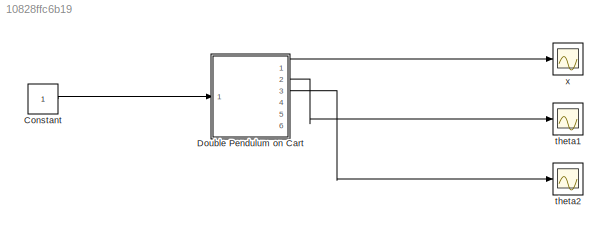
MODEL slx_10828ffc6b19
KIND model
CONFIG AbsTol = auto
CONFIG EnableMultiTasking = off
CONFIG FixedStep = 0.05
CONFIG MaxStep = auto
CONFIG MinStep = auto
CONFIG RelTol = 0.4
CONFIG SampleTimeConstraint = Unconstrained
CONFIG Solver = ode15s
CONFIG SolverName = ode15s
CONFIG StartTime = 0.0
CONFIG StopTime = 0.5
BLOCK [Constant] Constant
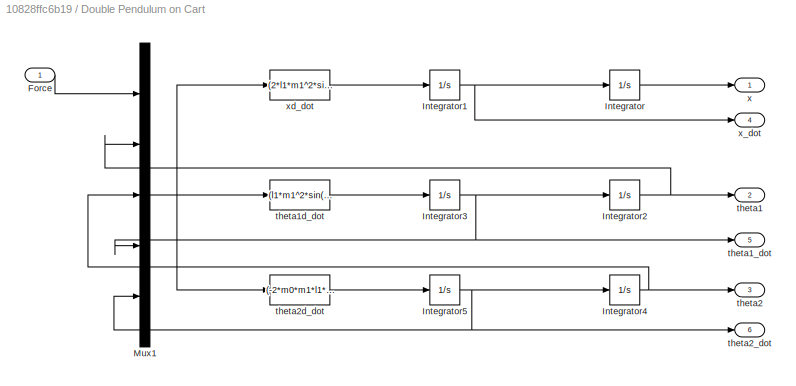
BLOCK [SubSystem] Double Pendulum on Cart
  Ports = [1, 6]
  RequestExecContextInheritance = off
BLOCK [Inport] Double Pendulum on Cart/Force
  IconDisplay = Port number
BLOCK [Integrator] Double Pendulum on Cart/Integrator
  Ports = [1, 1]
BLOCK [Integrator] Double Pendulum on Cart/Integrator1
  Ports = [1, 1]
BLOCK [Integrator] Double Pendulum on Cart/Integrator2
  Ports = [1, 1]
BLOCK [Integrator] Double Pendulum on Cart/Integrator3
  Ports = [1, 1]
BLOCK [Integrator] Double Pendulum on Cart/Integrator4
  Ports = [1, 1]
BLOCK [Integrator] Double Pendulum on Cart/Integrator5
  Ports = [1, 1]
BLOCK [Mux] Double Pendulum on Cart/Mux1
  DisplayOption = bar
  Inputs = 5
  Ports = [5, 1]
BLOCK [Outport] Double Pendulum on Cart/theta1
  IconDisplay = Port number
  Port = 2
  VectorParamsAs1DForOutWhenUnconnected = off
BLOCK [Outport] Double Pendulum on Cart/theta1_dot
  IconDisplay = Port number
  Port = 5
  VectorParamsAs1DForOutWhenUnconnected = off
BLOCK [Fcn] Double Pendulum on Cart/theta1d_dot
  Expr = (l1*m1^2*sin(2*u(2))+l1*m1*m2*sin(2*u(2))+l2*m0*m2*l2*sin(2*u(2)-2*u(3)))*u(4)^2-(m1*m2*l2*sin(u(2)+u(3))+m1*m2*l2*sin(u(2)-u(3))+2*m0*m2*l2*sin(u(2)-u(3)))*u(5)^2-m0*m1*(-2*sin(u(2))-m0*m2*sin(u(2))-2*m1^2*sin(u(2))-2*m1*m2*sin(u(2))-m0*m2*sin(u(2))-2*u(3))*g+(2*m0*m1*cos(u(2))+m0*m2*cos(u(2))-m0*m2*cos(u(2)-u(3)))*u(1)/(l1*(m1^2+2*m0*m1+m0*m2+m1*m2-m0*m2*cos(2*u(2)-2*u(3))-m1^2*cos(2*u(2))))
BLOCK [Outport] Double Pendulum on Cart/theta2
  IconDisplay = Port number
  Port = 3
  VectorParamsAs1DForOutWhenUnconnected = off
BLOCK [Outport] Double Pendulum on Cart/theta2_dot
  IconDisplay = Port number
  Port = 6
  VectorParamsAs1DForOutWhenUnconnected = off
BLOCK [Fcn] Double Pendulum on Cart/theta2d_dot
  Expr = (-2*m0*m1*l1*sin(u(2)-u(3))-2*m0*m2*l2*sin(u(2)-u(3)))*u(4)^2+m0*m2*l2*sin(2*u(2)-2*u(3))*u(5)^2-(m0*m1*sin(2*u(2)-u(3))-m0*m1*sin(u(3))+m0*m2*sin(2*u(2)-u(3))-m0*m2*sin(u(3)))*g+(m0*m1*cos(u(3))-m0*m1*cos(2*u(2)-u(3))+m0*m2*cos(u(3))-m0*m2*cos(2*u(2)-u(3)))*u(1)/(l2*(m1^2+2*m0*m1+m0*m2+m1*m2-m0*m2*cos(2*u(2)-2*u(3))-m1^2*cos(2*u(2))))
BLOCK [Outport] Double Pendulum on Cart/x
  IconDisplay = Port number
  VectorParamsAs1DForOutWhenUnconnected = off
BLOCK [Outport] Double Pendulum on Cart/x_dot
  IconDisplay = Port number
  Port = 4
  VectorParamsAs1DForOutWhenUnconnected = off
BLOCK [Fcn] Double Pendulum on Cart/xd_dot
  Expr = (2*l1*m1^2*sin(u(2))+2*l1*m1*m2*sin(u(2)))*u(4)^2-(m1*m2*l2*sin(2*u(2)-u(3))+m1*m2*l2*sin(u(3)))*u(5)^2-(-m1^2*sin(2*u(2))-m1*m2*sin(2*u(2)))*g+(2*m0*m1+m0*m2-m0*m2*cos(2*u(2)-2*u(3)))*u(1)/(m1^2+2*m0*m1+m0*m2+m1*m2-m0*m2*cos(2*u(2)-2*u(3))-m1^2*cos(2*u(2)))
BLOCK [Scope] theta1
  DefaultConfigurationName = spbscopes.TimeScopeBlockCfg
  Floating = off
  NumInputPorts = 1
  Ports = [1]
  ScopeSpecificationString = spbscopes.TimeScopeBlockCfg('CurrentConfiguration', extmgr.ConfigurationSet(extmgr.Configuration('Core','General UI',true),extmgr.Configuration('Core','Source UI',true),extmgr.Configuration('Sources','WiredSimulink',true),extmgr.Configuration('Visuals','Time Domain',true,'DisplayPropertyDefaults',struct('MinYLimReal','-0.00000000000029','MaxYLimReal','-0.00000000000013','YLabelReal','Amplitude','M...<+1816ch>
  UserDataPersistent = on
BLOCK [Scope] theta2
  DefaultConfigurationName = spbscopes.TimeScopeBlockCfg
  Floating = off
  NumInputPorts = 1
  Ports = [1]
  ScopeSpecificationString = spbscopes.TimeScopeBlockCfg('CurrentConfiguration', extmgr.ConfigurationSet(extmgr.Configuration('Core','General UI',true),extmgr.Configuration('Core','Source UI',true),extmgr.Configuration('Sources','WiredSimulink',true,'DataLoggingVariableName','ScopeData1'),extmgr.Configuration('Visuals','Time Domain',true,'DisplayPropertyDefaults',struct('MinYLimReal','-0.00000000000053','MaxYLimReal','0.00000...<+1804ch>
  UserDataPersistent = on
BLOCK [Scope] x
  DefaultConfigurationName = spbscopes.TimeScopeBlockCfg
  Floating = off
  NumInputPorts = 1
  Ports = [1]
  ScopeSpecificationString = spbscopes.TimeScopeBlockCfg('CurrentConfiguration', extmgr.ConfigurationSet(extmgr.Configuration('Core','General UI',true),extmgr.Configuration('Core','Source UI',true),extmgr.Configuration('Sources','WiredSimulink',true,'DataLoggingVariableName','ScopeData3'),extmgr.Configuration('Visuals','Time Domain',true,'DisplayPropertyDefaults',struct('MinYLimReal','-0.00185','MaxYLimReal','0.08983','YLabel...<+1746ch>
  UserDataPersistent = on
LINE Constant:1 -> Double Pendulum on Cart:1
LINE Double Pendulum on Cart/Force:1 -> Double Pendulum on Cart/Mux1:1
NET Double Pendulum on Cart/Integrator1:1 -> Double Pendulum on Cart/Integrator:1, Double Pendulum on Cart/x_dot:1
NET Double Pendulum on Cart/Integrator2:1 -> Double Pendulum on Cart/Mux1:2, Double Pendulum on Cart/theta1:1
NET Double Pendulum on Cart/Integrator3:1 -> Double Pendulum on Cart/Integrator2:1, Double Pendulum on Cart/Mux1:4, Double Pendulum on Cart/theta1_dot:1
NET Double Pendulum on Cart/Integrator4:1 -> Double Pendulum on Cart/Mux1:3, Double Pendulum on Cart/theta2:1
NET Double Pendulum on Cart/Integrator5:1 -> Double Pendulum on Cart/Integrator4:1, Double Pendulum on Cart/Mux1:5, Double Pendulum on Cart/theta2_dot:1
LINE Double Pendulum on Cart/Integrator:1 -> Double Pendulum on Cart/x:1
NET Double Pendulum on Cart/Mux1:1 -> Double Pendulum on Cart/theta1d_dot:1, Double Pendulum on Cart/theta2d_dot:1, Double Pendulum on Cart/xd_dot:1
LINE Double Pendulum on Cart/theta1d_dot:1 -> Double Pendulum on Cart/Integrator3:1
LINE Double Pendulum on Cart/theta2d_dot:1 -> Double Pendulum on Cart/Integrator5:1
LINE Double Pendulum on Cart/xd_dot:1 -> Double Pendulum on Cart/Integrator1:1
LINE Double Pendulum on Cart:1 -> x:1
LINE Double Pendulum on Cart:2 -> theta1:1
LINE Double Pendulum on Cart:3 -> theta2:1
note: NET lines group one-source signal fan-out (src -> all destinations, sorted); 1:1 wires keep LINE
